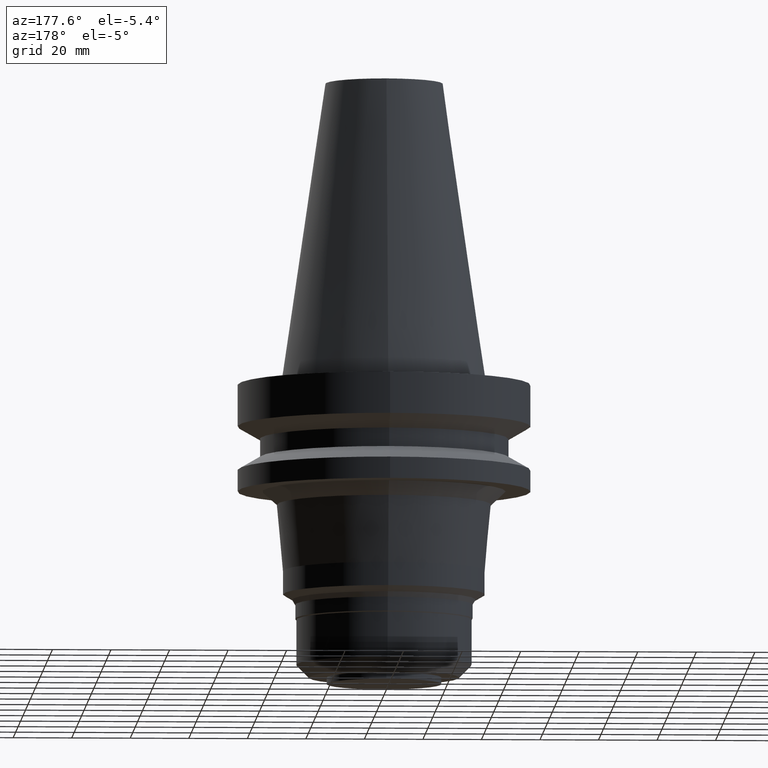
[diagram: clean part render]
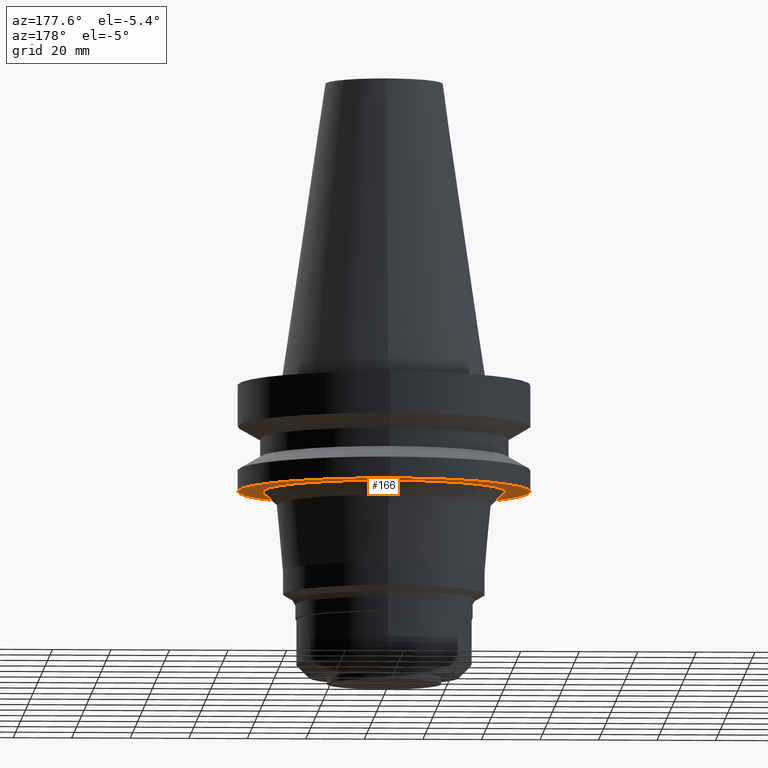
[diagram: same view with one face highlighted and labeled with its STEP entity id]
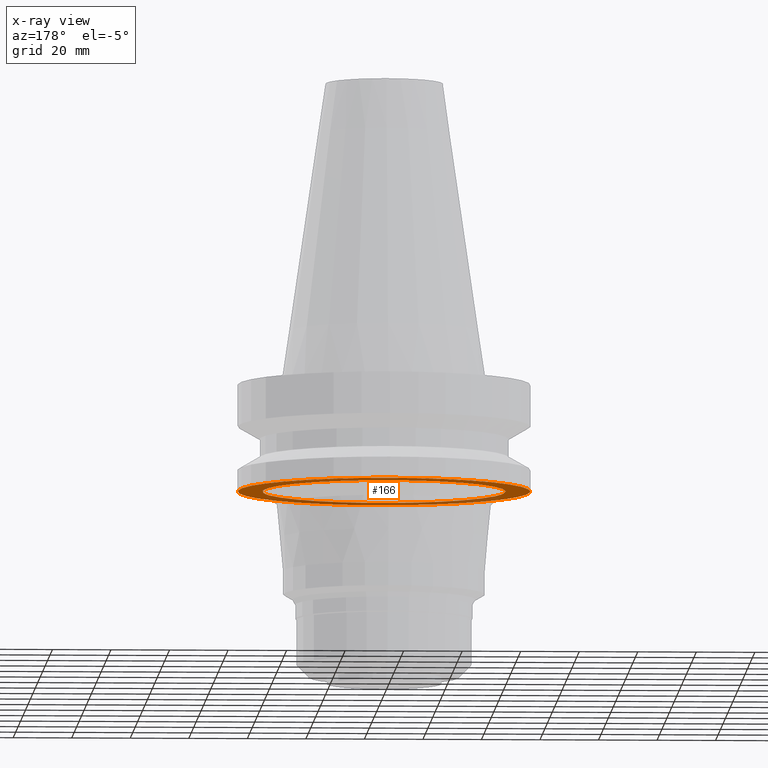
[diagram: x-ray of the same camera — body ghosted, the highlighted face saturated]
A machine part, auxiliary view. The second image highlights one B-rep face of the part: STEP entity #166.
The next image is the same camera in x-ray: the body ghosted, the highlighted face saturated — about 32% of this face is hidden behind the body in this view.
In plain terms, the highlighted planar face has unit normal (0, 0, -1).
Its self-contained STEP definition (entity closure, byte-faithful):
#84=EDGE_CURVE('Unnamed[1]',#219,#219,#220,.T.);
#113=EDGE_CURVE('Unnamed[1]',#263,#263,#264,.T.);
#166=ADVANCED_FACE('Unnamed[1]',(#347,#348),#349,.T.);
#219=VERTEX_POINT('',#407);
#220=CIRCLE('',#408,50.0);
#263=VERTEX_POINT('',#462);
#264=CIRCLE('',#463,41.5643345023417);
#347=FACE_BOUND('',#566,.T.);
#348=FACE_OUTER_BOUND('',#567,.T.);
#349=PLANE('',#568);
#407=CARTESIAN_POINT('',(2.32682891837996E-015,50.0,-37.9999999999998));
#408=AXIS2_PLACEMENT_3D('',#618,#619,#620);
#462=CARTESIAN_POINT('',(2.32682891837996E-015,41.5643345023417,-37.9999999999998));
#463=AXIS2_PLACEMENT_3D('',#664,#665,#666);
#566=EDGE_LOOP('',(#760));
#567=EDGE_LOOP('',(#761));
#568=AXIS2_PLACEMENT_3D('',#762,#763,#764);
#618=CARTESIAN_POINT('',(2.32682891837996E-015,4.65365783675992E-015,-37.9999999999998));
#619=DIRECTION('',(6.12323399573677E-017,1.22464679914672E-016,-1.0));
#620=DIRECTION('',(-1.23259516440783E-032,1.0,1.22464679914672E-016));
#664=CARTESIAN_POINT('',(2.32682891837996E-015,4.65365783675992E-015,-37.9999999999998));
#665=DIRECTION('',(6.12323399573677E-017,1.2246467991477E-016,-1.0));
#666=DIRECTION('',(-1.23259516440783E-032,1.0,1.2246467991477E-016));
#760=ORIENTED_EDGE('',*,*,#113,.F.);
#761=ORIENTED_EDGE('',*,*,#84,.T.);
#762=CARTESIAN_POINT('',(2.32682891837996E-015,45.7821672511709,-37.9999999999998));
#763=DIRECTION('',(6.12323399573677E-017,1.22464679914735E-016,-1.0));
#764=DIRECTION('',(-1.23259516440783E-032,1.0,1.22464679914735E-016));